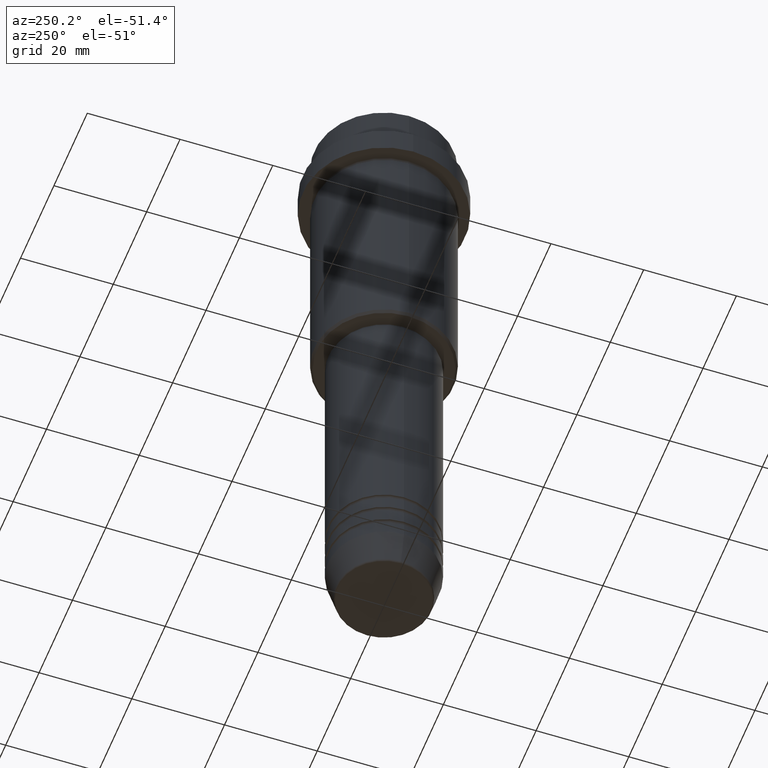
[diagram: clean part render]
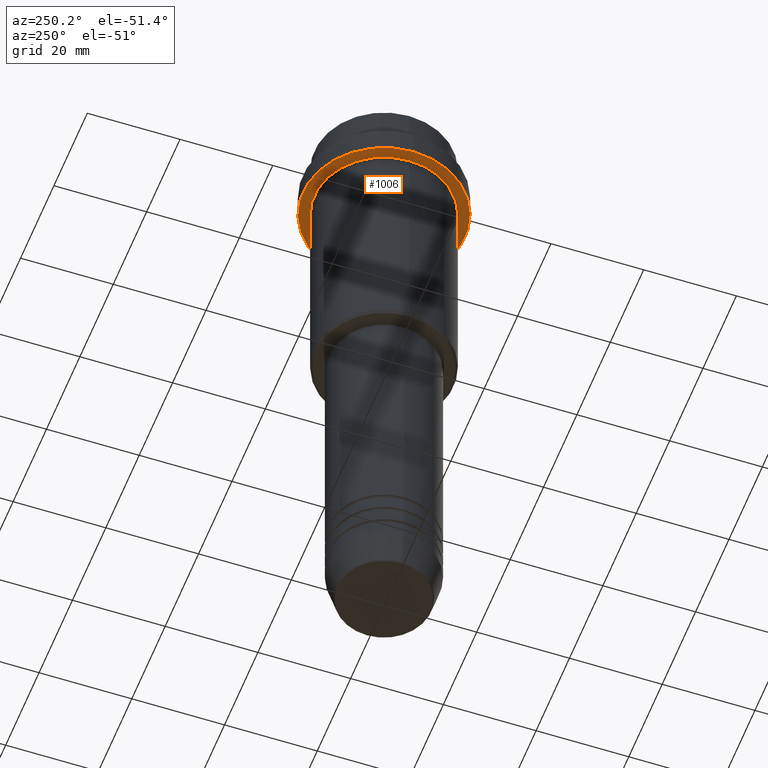
[diagram: same view with one face highlighted and labeled with its STEP entity id]
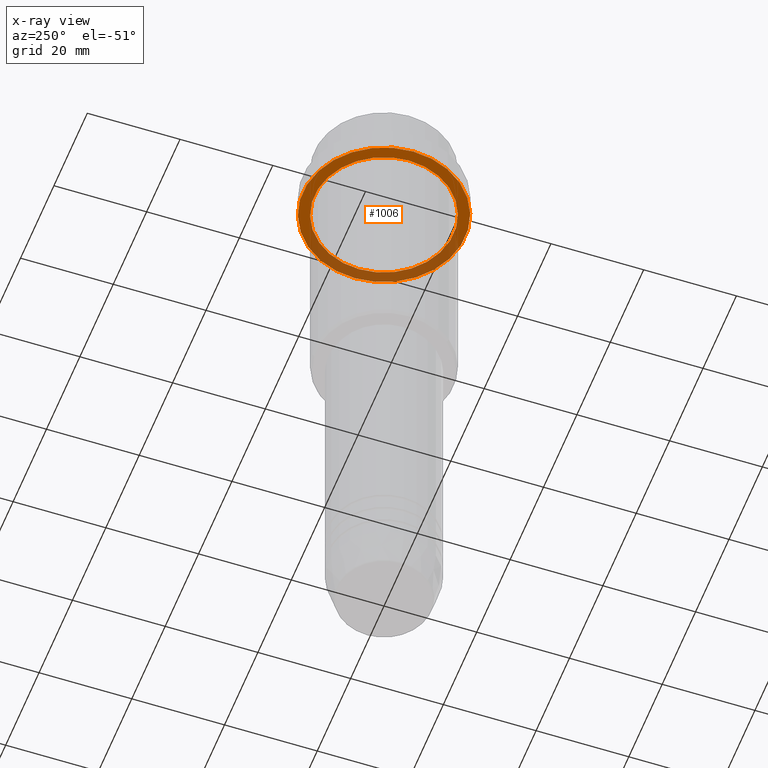
[diagram: x-ray of the same camera — body ghosted, the highlighted face saturated]
A machine part, auxiliary view. The second image highlights one B-rep face of the part: STEP entity #1006.
The next image is the same camera in x-ray: the body ghosted, the highlighted face saturated — about 37% of this face is hidden behind the body in this view.
In plain terms, the highlighted planar face has unit normal (0, 0, -1).
Its self-contained STEP definition (entity closure, byte-faithful):
#8 = CIRCLE ( 'NONE', #1106, 17.50000000000000000 ) ;
#145 = AXIS2_PLACEMENT_3D ( 'NONE', #215, #966, #1178 ) ;
#215 = CARTESIAN_POINT ( 'NONE',  ( 0.000000000000000000, 17.50000000000000000, -15.00000000000000000 ) ) ;
#242 = EDGE_CURVE ( 'NONE', #287, #248, #8, .T. ) ;
#248 = VERTEX_POINT ( 'NONE', #665 ) ;
#287 = VERTEX_POINT ( 'NONE', #558 ) ;
#295 = DIRECTION ( 'NONE',  ( -1.000000000000000000, 0.000000000000000000, 0.000000000000000000 ) ) ;
#305 = EDGE_CURVE ( 'NONE', #248, #287, #809, .T. ) ;
#309 = PLANE ( 'NONE',  #145 ) ;
#376 = DIRECTION ( 'NONE',  ( -1.000000000000000000, 0.000000000000000000, 0.000000000000000000 ) ) ;
#412 = FACE_BOUND ( 'NONE', #1068, .T. ) ;
#466 = CARTESIAN_POINT ( 'NONE',  ( 0.000000000000000000, 0.000000000000000000, -15.00000000000000000 ) ) ;
#512 = VERTEX_POINT ( 'NONE', #1252 ) ;
#558 = CARTESIAN_POINT ( 'NONE',  ( 17.50000000000000000, 0.000000000000000000, -15.00000000000000000 ) ) ;
#574 = DIRECTION ( 'NONE',  ( -0.000000000000000000, -0.000000000000000000, 1.000000000000000000 ) ) ;
#594 = CIRCLE ( 'NONE', #613, 14.99999999999999467 ) ;
#610 = EDGE_CURVE ( 'NONE', #512, #1200, #1303, .T. ) ;
#613 = AXIS2_PLACEMENT_3D ( 'NONE', #1261, #693, #376 ) ;
#619 = ORIENTED_EDGE ( 'NONE', *, *, #610, .T. ) ;
#665 = CARTESIAN_POINT ( 'NONE',  ( -17.50000000000000000, 2.143131898507868248E-15, -15.00000000000000000 ) ) ;
#685 = AXIS2_PLACEMENT_3D ( 'NONE', #1094, #1386, #295 ) ;
#693 = DIRECTION ( 'NONE',  ( -0.000000000000000000, -0.000000000000000000, 1.000000000000000000 ) ) ;
#739 = FACE_OUTER_BOUND ( 'NONE', #948, .T. ) ;
#792 = CARTESIAN_POINT ( 'NONE',  ( 0.000000000000000000, 0.000000000000000000, -15.00000000000000000 ) ) ;
#809 = CIRCLE ( 'NONE', #988, 17.50000000000000000 ) ;
#900 = DIRECTION ( 'NONE',  ( 1.000000000000000000, 0.000000000000000000, 0.000000000000000000 ) ) ;
#908 = DIRECTION ( 'NONE',  ( 1.000000000000000000, 0.000000000000000000, 0.000000000000000000 ) ) ;
#948 = EDGE_LOOP ( 'NONE', ( #1029, #1122 ) ) ;
#966 = DIRECTION ( 'NONE',  ( 0.000000000000000000, 0.000000000000000000, -1.000000000000000000 ) ) ;
#980 = ORIENTED_EDGE ( 'NONE', *, *, #1319, .T. ) ;
#988 = AXIS2_PLACEMENT_3D ( 'NONE', #792, #1227, #900 ) ;
#1006 = ADVANCED_FACE ( 'NONE', ( #412, #739 ), #309, .T. ) ;
#1029 = ORIENTED_EDGE ( 'NONE', *, *, #242, .F. ) ;
#1068 = EDGE_LOOP ( 'NONE', ( #619, #980 ) ) ;
#1094 = CARTESIAN_POINT ( 'NONE',  ( 0.000000000000000000, 0.000000000000000000, -15.00000000000000000 ) ) ;
#1106 = AXIS2_PLACEMENT_3D ( 'NONE', #466, #574, #908 ) ;
#1122 = ORIENTED_EDGE ( 'NONE', *, *, #305, .F. ) ;
#1178 = DIRECTION ( 'NONE',  ( -1.000000000000000000, 0.000000000000000000, -0.000000000000000000 ) ) ;
#1200 = VERTEX_POINT ( 'NONE', #1314 ) ;
#1227 = DIRECTION ( 'NONE',  ( -0.000000000000000000, -0.000000000000000000, 1.000000000000000000 ) ) ;
#1252 = CARTESIAN_POINT ( 'NONE',  ( -14.99999999999999467, 0.000000000000000000, -15.00000000000000000 ) ) ;
#1261 = CARTESIAN_POINT ( 'NONE',  ( 0.000000000000000000, 0.000000000000000000, -15.00000000000000000 ) ) ;
#1303 = CIRCLE ( 'NONE', #685, 14.99999999999999467 ) ;
#1314 = CARTESIAN_POINT ( 'NONE',  ( 14.99999999999999467, 1.836970198721029194E-15, -15.00000000000000000 ) ) ;
#1319 = EDGE_CURVE ( 'NONE', #1200, #512, #594, .T. ) ;
#1386 = DIRECTION ( 'NONE',  ( -0.000000000000000000, -0.000000000000000000, 1.000000000000000000 ) ) ;